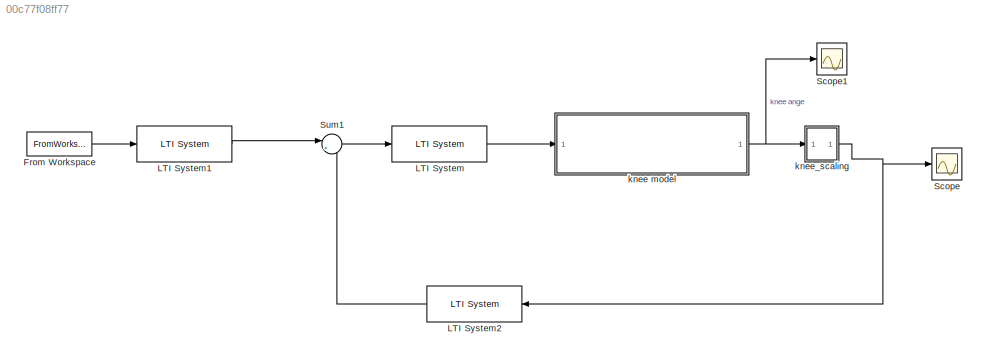
MODEL slx_00c77f08ff77
KIND model
CONFIG AbsTol = auto
CONFIG EnableMultiTasking = off
CONFIG FixedStep = auto
CONFIG MaxStep = auto
CONFIG MinStep = auto
CONFIG RelTol = 1e-3
CONFIG SampleTimeConstraint = Unconstrained
CONFIG SolverName = VariableStepAuto
CONFIG StartTime = 0.0
CONFIG StopTime = 10.0
BLOCK [FromWorkspace] From Workspace
  VariableName = input
BLOCK [Reference] LTI System  REF=cstblocks/LTI System
  SourceBlock = cstblocks/LTI System
  SourceType = LTI Block
BLOCK [Reference] LTI System1  REF=cstblocks/LTI System
  SourceBlock = cstblocks/LTI System
  SourceType = LTI Block
BLOCK [Reference] LTI System2  REF=cstblocks/LTI System
  SourceBlock = cstblocks/LTI System
  SourceType = LTI Block
BLOCK [Scope] Scope
  Floating = off
  NumInputPorts = 1
  ScopeSpecificationString = Simulink.scopes.TimeScopeBlockCfg('CurrentConfiguration', extmgr.ConfigurationSet(extmgr.Configuration('Core','General UI',true),extmgr.Configuration('Core','Source UI',true),extmgr.Configuration('Sources','WiredSimulink',true),extmgr.Configuration('Visuals','Time Domain',true,'SerializedDisplays',{struct('MinYLimReal','35.59699','MaxYLimReal','193.72879','YLabelReal','','MinYLimMag','35.59699','M...<+1460ch>
BLOCK [Scope] Scope1
  Floating = off
  NumInputPorts = 1
  ScopeSpecificationString = Simulink.scopes.TimeScopeBlockCfg('CurrentConfiguration', extmgr.ConfigurationSet(extmgr.Configuration('Core','General UI',true),extmgr.Configuration('Core','Source UI',true),extmgr.Configuration('Sources','WiredSimulink',true,'DataLoggingVariableName','ScopeData1'),extmgr.Configuration('Visuals','Time Domain',true,'SerializedDisplays',{struct('MinYLimReal','-0.27452','MaxYLimReal','2.4854','YLabe...<+1482ch>
BLOCK [Sum] Sum1
  Inputs = |+-
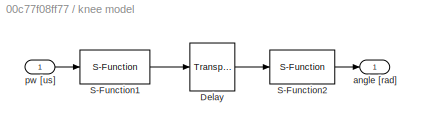
BLOCK [SubSystem] knee model
BLOCK [TransportDelay] knee model/Delay
  DelayTime = 0.025
  InitialOutput = act0(1:2:17)
BLOCK [S-Function] knee model/S-Function1
  EnableBusSupport = off
  FunctionName = act_dyn
  Parameters = act0,freq,A,B
  SFcnIsStateOwnerBlock = off
  SFunctionDeploymentMode = off
BLOCK [S-Function] knee model/S-Function2
  EnableBusSupport = off
  FunctionName = con_dyn
  Parameters = qk0
  SFcnIsStateOwnerBlock = off
  SFunctionDeploymentMode = off
BLOCK [Outport] knee model/angle [rad]
  InitialOutput = 0
BLOCK [Inport] knee model/pw [us]
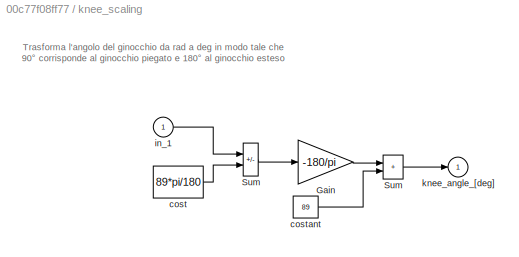
BLOCK [SubSystem] knee_scaling
  ShowPortLabels = none
BLOCK [Gain] knee_scaling/Gain
  Gain = -180/pi
  OutDataTypeStr = Inherit: Same as input
  ParamDataTypeStr = Inherit: Same as input
  SaturateOnIntegerOverflow = on
BLOCK [Sum] knee_scaling/Sum 
  IconShape = rectangular
  InputSameDT = on
  OutDataTypeStr = Inherit: Same as first input
  SaturateOnIntegerOverflow = on
BLOCK [Constant] knee_scaling/cost
  Value = 89*pi/180
BLOCK [Constant] knee_scaling/costant 
  Value = 89
BLOCK [Inport] knee_scaling/in_1
BLOCK [Outport] knee_scaling/knee_angle_[deg]
  InitialOutput = 0
ANNOTATION knee_scaling: Trasforma l'angolo del ginocchio da rad a deg in modo tale che 90° corrisponde al ginocchio piegato e 180° al ginocchio esteso
LINE From Workspace:1 -> LTI System1:1
LINE LTI System1:1 -> Sum1:1
LINE LTI System2:1 -> Sum1:2
LINE LTI System:1 -> knee model:1
LINE Sum1:1 -> LTI System:1
LINE knee model/Delay:1 -> knee model/S-Function2:1
LINE knee model/S-Function1:1 -> knee model/Delay:1
LINE knee model/S-Function2:1 -> knee model/angle [rad]:1
LINE knee model/pw [us]:1 -> knee model/S-Function1:1
NET knee model:1 -> Scope1:1, knee_scaling:1
LINE knee_scaling/Gain:1 -> knee_scaling/Sum :1
NET knee_scaling/Sum :1 -> knee_scaling/Gain:1, knee_scaling/knee_angle_[deg]:1
LINE knee_scaling/cost:1 -> knee_scaling/Sum :2
LINE knee_scaling/costant :1 -> knee_scaling/Sum :2
LINE knee_scaling/in_1:1 -> knee_scaling/Sum :1
NET knee_scaling:1 -> LTI System2:1, Scope:1
note: NET lines group one-source signal fan-out (src -> all destinations, sorted); 1:1 wires keep LINE
